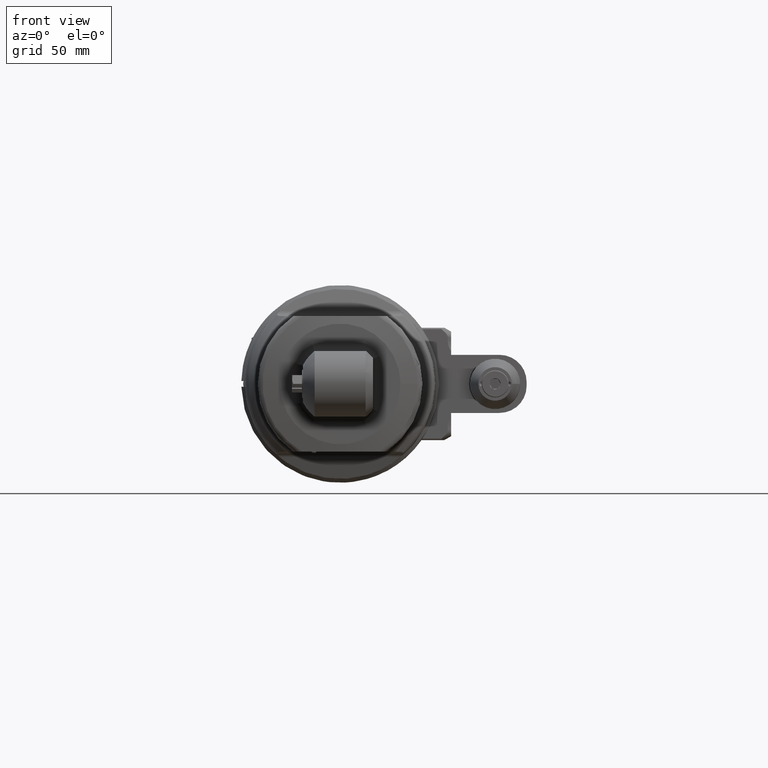
[diagram: clean part render]
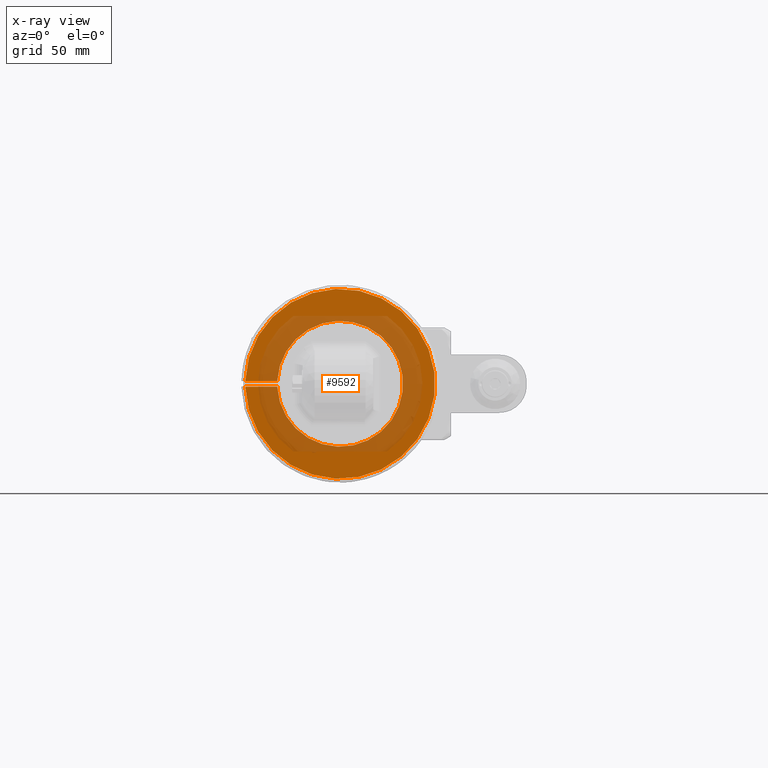
[diagram: x-ray — body ghosted, one internal face saturated and labeled with its STEP entity id]
A machine part, front view, then the same camera in x-ray: the body is ghosted and one INTERNAL B-rep face — a face not visible from any outside direction — is saturated and labeled: STEP entity #9592.
In plain terms, the highlighted planar face has unit normal (0, -1, 0).
Its self-contained STEP definition (entity closure, byte-faithful):
#309=PLANE('',#10245);
#702=FACE_OUTER_BOUND('',#1289,.T.);
#1289=EDGE_LOOP('',(#6527,#6528,#6529,#6530));
#1946=CIRCLE('',#10241,49.);
#1949=CIRCLE('',#10246,32.5);
#2556=LINE('',#14203,#3289);
#2561=LINE('',#14237,#3294);
#3289=VECTOR('',#11304,16.51166927349);
#3294=VECTOR('',#11315,16.51166927349);
#4036=VERTEX_POINT('',#14192);
#4037=VERTEX_POINT('',#14196);
#4038=VERTEX_POINT('',#14202);
#4046=VERTEX_POINT('',#14236);
#5019=EDGE_CURVE('',#4037,#4036,#1946,.T.);
#5021=EDGE_CURVE('',#4038,#4037,#2556,.T.);
#5030=EDGE_CURVE('',#4036,#4046,#2561,.T.);
#5031=EDGE_CURVE('',#4046,#4038,#1949,.T.);
#6527=ORIENTED_EDGE('',*,*,#5019,.T.);
#6528=ORIENTED_EDGE('',*,*,#5030,.T.);
#6529=ORIENTED_EDGE('',*,*,#5031,.T.);
#6530=ORIENTED_EDGE('',*,*,#5021,.T.);
#9592=ADVANCED_FACE('',(#702),#309,.T.);
#10241=AXIS2_PLACEMENT_3D('',#14197,#11300,#11301);
#10245=AXIS2_PLACEMENT_3D('',#14235,#11313,#11314);
#10246=AXIS2_PLACEMENT_3D('',#14238,#11316,#11317);
#11300=DIRECTION('center_axis',(0.,-1.,0.));
#11301=DIRECTION('ref_axis',(1.,0.,0.));
#11304=DIRECTION('',(-1.,0.,0.));
#11313=DIRECTION('center_axis',(0.,-1.,0.));
#11314=DIRECTION('ref_axis',(-1.,0.,0.));
#11315=DIRECTION('',(1.,0.,0.));
#11316=DIRECTION('center_axis',(0.,1.,0.));
#11317=DIRECTION('ref_axis',(-0.998934343430642,0.,0.0461538461538519));
#14192=CARTESIAN_POINT('',(-48.97703543499,0.,1.5));
#14196=CARTESIAN_POINT('',(-48.97703543499,0.,-1.5));
#14197=CARTESIAN_POINT('Origin',(0.,0.,0.));
#14202=CARTESIAN_POINT('',(-32.4653661615,0.,-1.5));
#14203=CARTESIAN_POINT('',(-32.4653661615,0.,-1.5));
#14235=CARTESIAN_POINT('Origin',(-49.13074005203,0.,0.));
#14236=CARTESIAN_POINT('',(-32.4653661615,0.,1.5));
#14237=CARTESIAN_POINT('',(-48.97703543499,0.,1.5));
#14238=CARTESIAN_POINT('Origin',(0.,0.,0.));